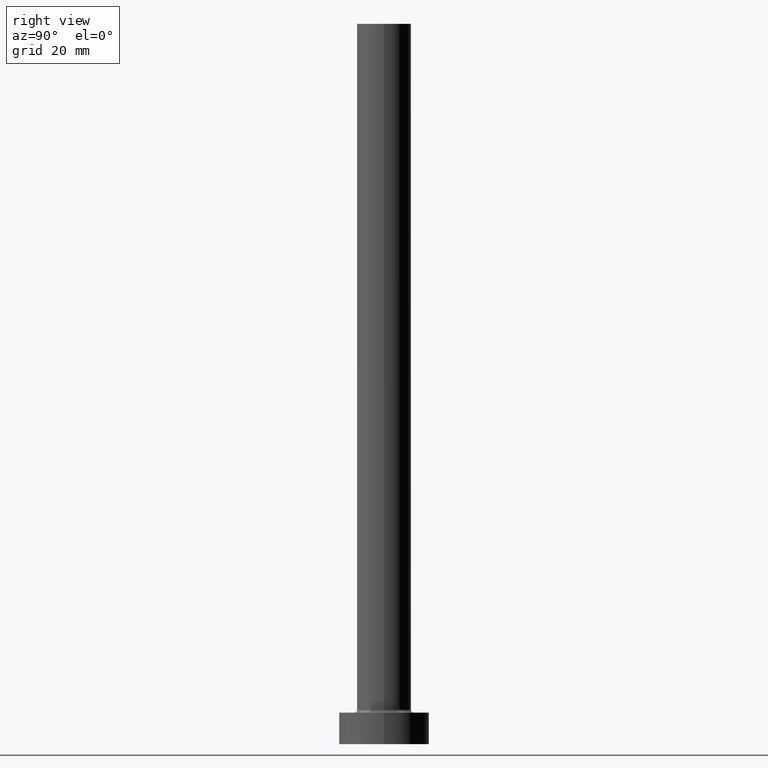
[diagram: clean part render]
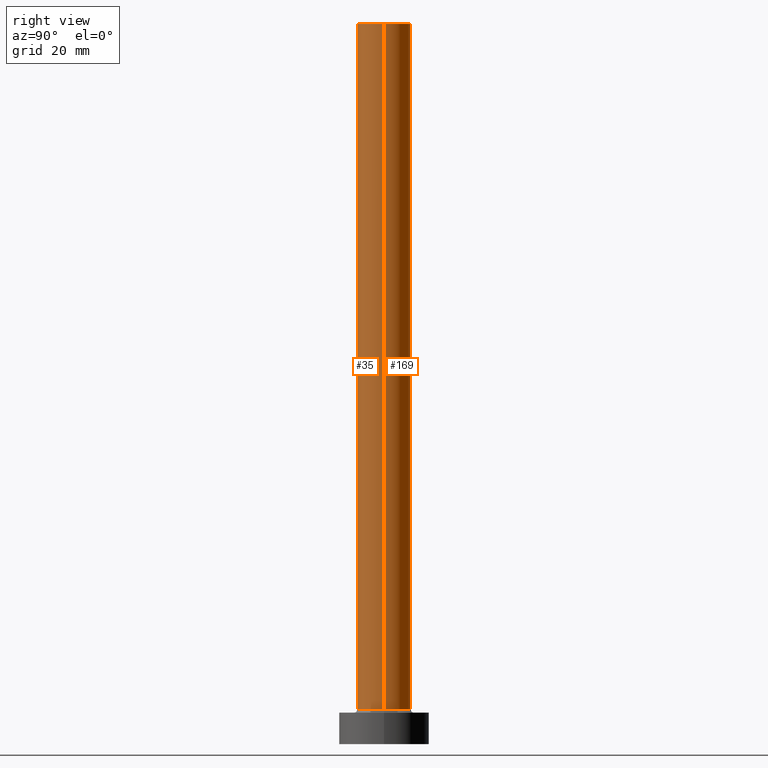
[diagram: same view with one multi-face feature highlighted, each face labeled with its STEP entity id]
A machine part, right view. The highlighted faces form ONE feature: a constant-radius fillet chain: 2 tangent blend faces with common blend radius 6 mm. The faces share edges in the B-rep.
Their STEP definitions:
[1] entity #35 (Cylinder):
#35 = ADVANCED_FACE ( 'NONE', ( #103 ), #430, .T. ) ;
#74 = EDGE_CURVE ( 'NONE', #182, #264, #335, .T. ) ;
#76 = CARTESIAN_POINT ( 'NONE',  ( 6.000000000000000888, 7.347880794884120722E-16, 160.0000000000000000 ) ) ;
#82 = ORIENTED_EDGE ( 'NONE', *, *, #238, .F. ) ;
#85 = LINE ( 'NONE', #243, #449 ) ;
#96 = DIRECTION ( 'NONE',  ( -0.000000000000000000, -0.000000000000000000, -1.000000000000000000 ) ) ;
#103 = FACE_OUTER_BOUND ( 'NONE', #357, .T. ) ;
#111 = DIRECTION ( 'NONE',  ( 0.000000000000000000, 0.000000000000000000, 1.000000000000000000 ) ) ;
#121 = ORIENTED_EDGE ( 'NONE', *, *, #419, .T. ) ;
#124 = ORIENTED_EDGE ( 'NONE', *, *, #158, .T. ) ;
#127 = VECTOR ( 'NONE', #146, 1000.000000000000000 ) ;
#140 = CARTESIAN_POINT ( 'NONE',  ( 0.000000000000000000, 0.000000000000000000, 160.0000000000000000 ) ) ;
#143 = AXIS2_PLACEMENT_3D ( 'NONE', #389, #190, #226 ) ;
#146 = DIRECTION ( 'NONE',  ( -0.000000000000000000, -0.000000000000000000, -1.000000000000000000 ) ) ;
#158 = EDGE_CURVE ( 'NONE', #182, #176, #177, .T. ) ;
#160 = AXIS2_PLACEMENT_3D ( 'NONE', #266, #111, #399 ) ;
#176 = VERTEX_POINT ( 'NONE', #332 ) ;
#177 = LINE ( 'NONE', #319, #127 ) ;
#182 = VERTEX_POINT ( 'NONE', #350 ) ;
#190 = DIRECTION ( 'NONE',  ( 0.000000000000000000, 0.000000000000000000, 1.000000000000000000 ) ) ;
#226 = DIRECTION ( 'NONE',  ( 1.000000000000000000, 0.000000000000000000, 0.000000000000000000 ) ) ;
#238 = EDGE_CURVE ( 'NONE', #264, #318, #85, .T. ) ;
#243 = CARTESIAN_POINT ( 'NONE',  ( 6.000000000000000888, 7.347880794884120722E-16, 160.0000000000000000 ) ) ;
#253 = DIRECTION ( 'NONE',  ( -1.000000000000000000, 0.000000000000000000, 0.000000000000000000 ) ) ;
#264 = VERTEX_POINT ( 'NONE', #76 ) ;
#266 = CARTESIAN_POINT ( 'NONE',  ( 0.000000000000000000, 0.000000000000000000, 7.700000000000012612 ) ) ;
#279 = AXIS2_PLACEMENT_3D ( 'NONE', #140, #360, #253 ) ;
#318 = VERTEX_POINT ( 'NONE', #398 ) ;
#319 = CARTESIAN_POINT ( 'NONE',  ( -6.000000000000000888, 0.000000000000000000, 160.0000000000000000 ) ) ;
#332 = CARTESIAN_POINT ( 'NONE',  ( -6.000000000000000888, 0.000000000000000000, 7.700000000000012612 ) ) ;
#335 = CIRCLE ( 'NONE', #143, 6.000000000000000888 ) ;
#350 = CARTESIAN_POINT ( 'NONE',  ( -6.000000000000000888, 0.000000000000000000, 160.0000000000000000 ) ) ;
#357 = EDGE_LOOP ( 'NONE', ( #82, #368, #124, #121 ) ) ;
#358 = CIRCLE ( 'NONE', #160, 6.000000000000000888 ) ;
#360 = DIRECTION ( 'NONE',  ( -0.000000000000000000, -0.000000000000000000, -1.000000000000000000 ) ) ;
#368 = ORIENTED_EDGE ( 'NONE', *, *, #74, .F. ) ;
#389 = CARTESIAN_POINT ( 'NONE',  ( 0.000000000000000000, 0.000000000000000000, 160.0000000000000000 ) ) ;
#398 = CARTESIAN_POINT ( 'NONE',  ( 6.000000000000000888, 7.347880794884120722E-16, 7.700000000000012612 ) ) ;
#399 = DIRECTION ( 'NONE',  ( 1.000000000000000000, 0.000000000000000000, 0.000000000000000000 ) ) ;
#419 = EDGE_CURVE ( 'NONE', #176, #318, #358, .T. ) ;
#430 = CYLINDRICAL_SURFACE ( 'NONE', #279, 6.000000000000000888 ) ;
#449 = VECTOR ( 'NONE', #96, 1000.000000000000000 ) ;
[2] entity #169 (Cylinder):
#1 = ORIENTED_EDGE ( 'NONE', *, *, #192, .T. ) ;
#7 = DIRECTION ( 'NONE',  ( 1.000000000000000000, 0.000000000000000000, 0.000000000000000000 ) ) ;
#17 = CARTESIAN_POINT ( 'NONE',  ( 0.000000000000000000, 0.000000000000000000, 160.0000000000000000 ) ) ;
#53 = EDGE_LOOP ( 'NONE', ( #311, #377, #1, #222 ) ) ;
#54 = CYLINDRICAL_SURFACE ( 'NONE', #250, 6.000000000000000888 ) ;
#57 = CIRCLE ( 'NONE', #235, 6.000000000000000888 ) ;
#76 = CARTESIAN_POINT ( 'NONE',  ( 6.000000000000000888, 7.347880794884120722E-16, 160.0000000000000000 ) ) ;
#85 = LINE ( 'NONE', #243, #449 ) ;
#88 = DIRECTION ( 'NONE',  ( -0.000000000000000000, -0.000000000000000000, -1.000000000000000000 ) ) ;
#96 = DIRECTION ( 'NONE',  ( -0.000000000000000000, -0.000000000000000000, -1.000000000000000000 ) ) ;
#127 = VECTOR ( 'NONE', #146, 1000.000000000000000 ) ;
#129 = FACE_OUTER_BOUND ( 'NONE', #53, .T. ) ;
#146 = DIRECTION ( 'NONE',  ( -0.000000000000000000, -0.000000000000000000, -1.000000000000000000 ) ) ;
#158 = EDGE_CURVE ( 'NONE', #182, #176, #177, .T. ) ;
#168 = EDGE_CURVE ( 'NONE', #264, #182, #459, .T. ) ;
#169 = ADVANCED_FACE ( 'NONE', ( #129 ), #54, .T. ) ;
#176 = VERTEX_POINT ( 'NONE', #332 ) ;
#177 = LINE ( 'NONE', #319, #127 ) ;
#178 = DIRECTION ( 'NONE',  ( 0.000000000000000000, 0.000000000000000000, 1.000000000000000000 ) ) ;
#182 = VERTEX_POINT ( 'NONE', #350 ) ;
#192 = EDGE_CURVE ( 'NONE', #318, #176, #57, .T. ) ;
#222 = ORIENTED_EDGE ( 'NONE', *, *, #158, .F. ) ;
#235 = AXIS2_PLACEMENT_3D ( 'NONE', #374, #178, #7 ) ;
#238 = EDGE_CURVE ( 'NONE', #264, #318, #85, .T. ) ;
#243 = CARTESIAN_POINT ( 'NONE',  ( 6.000000000000000888, 7.347880794884120722E-16, 160.0000000000000000 ) ) ;
#250 = AXIS2_PLACEMENT_3D ( 'NONE', #252, #88, #387 ) ;
#252 = CARTESIAN_POINT ( 'NONE',  ( 0.000000000000000000, 0.000000000000000000, 160.0000000000000000 ) ) ;
#264 = VERTEX_POINT ( 'NONE', #76 ) ;
#265 = DIRECTION ( 'NONE',  ( 1.000000000000000000, 0.000000000000000000, 0.000000000000000000 ) ) ;
#271 = DIRECTION ( 'NONE',  ( 0.000000000000000000, 0.000000000000000000, 1.000000000000000000 ) ) ;
#311 = ORIENTED_EDGE ( 'NONE', *, *, #168, .F. ) ;
#318 = VERTEX_POINT ( 'NONE', #398 ) ;
#319 = CARTESIAN_POINT ( 'NONE',  ( -6.000000000000000888, 0.000000000000000000, 160.0000000000000000 ) ) ;
#332 = CARTESIAN_POINT ( 'NONE',  ( -6.000000000000000888, 0.000000000000000000, 7.700000000000012612 ) ) ;
#350 = CARTESIAN_POINT ( 'NONE',  ( -6.000000000000000888, 0.000000000000000000, 160.0000000000000000 ) ) ;
#374 = CARTESIAN_POINT ( 'NONE',  ( 0.000000000000000000, 0.000000000000000000, 7.700000000000012612 ) ) ;
#377 = ORIENTED_EDGE ( 'NONE', *, *, #238, .T. ) ;
#387 = DIRECTION ( 'NONE',  ( -1.000000000000000000, 0.000000000000000000, 0.000000000000000000 ) ) ;
#398 = CARTESIAN_POINT ( 'NONE',  ( 6.000000000000000888, 7.347880794884120722E-16, 7.700000000000012612 ) ) ;
#429 = AXIS2_PLACEMENT_3D ( 'NONE', #17, #271, #265 ) ;
#449 = VECTOR ( 'NONE', #96, 1000.000000000000000 ) ;
#459 = CIRCLE ( 'NONE', #429, 6.000000000000000888 ) ;